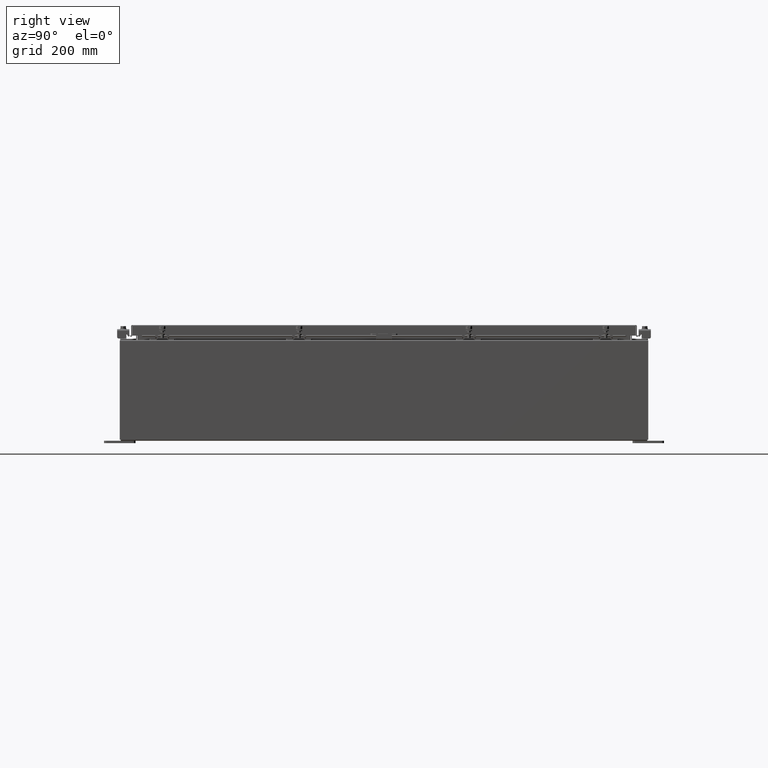
[diagram: clean part render]
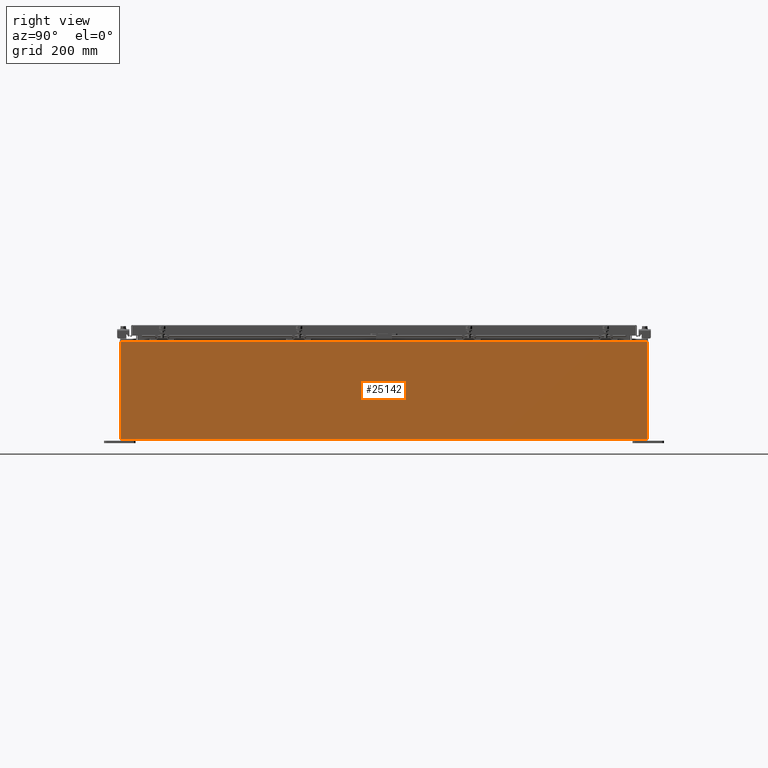
[diagram: same view with one face highlighted and labeled with its STEP entity id]
A machine part, right view. The second image highlights one B-rep face of the part: STEP entity #25142.
In plain terms, the highlighted planar face has unit normal (-1, 0, 0).
Its self-contained STEP definition (entity closure, byte-faithful):
#401 = VERTEX_POINT ( 'NONE', #12140 ) ;
#1977 = ORIENTED_EDGE ( 'NONE', *, *, #24314, .T. ) ;
#2423 = LINE ( 'NONE', #15196, #41766 ) ;
#3946 = EDGE_CURVE ( 'NONE', #45231, #401, #41501, .T. ) ;
#11906 = EDGE_CURVE ( 'NONE', #38152, #45231, #22863, .T. ) ;
#12140 = CARTESIAN_POINT ( 'NONE',  ( 18.00000000000000400, -20.92529999999999600, 0.01299999999999983500 ) ) ;
#12418 = VECTOR ( 'NONE', #45360, 39.37007874015748100 ) ;
#15196 = CARTESIAN_POINT ( 'NONE',  ( 18.00000000000000400, 20.92529999999998900, -6.479601959972424800E-014 ) ) ;
#18584 = CARTESIAN_POINT ( 'NONE',  ( 18.00000000000000400, -20.92529999999999600, 0.01299999999999985200 ) ) ;
#18719 = CARTESIAN_POINT ( 'NONE',  ( 18.00000000000003200, -20.92529999999999600, 7.837599999999999200 ) ) ;
#22174 = VERTEX_POINT ( 'NONE', #36466 ) ;
#22863 = LINE ( 'NONE', #48428, #12418 ) ;
#24314 = EDGE_CURVE ( 'NONE', #22174, #38152, #2423, .T. ) ;
#24427 = ORIENTED_EDGE ( 'NONE', *, *, #33130, .F. ) ;
#25142 = ADVANCED_FACE ( 'NONE', ( #29379 ), #32156, .F. ) ;
#25551 = ORIENTED_EDGE ( 'NONE', *, *, #11906, .T. ) ;
#27463 = AXIS2_PLACEMENT_3D ( 'NONE', #28216, #47779, #36092 ) ;
#28216 = CARTESIAN_POINT ( 'NONE',  ( 18.00000000000000400, 0.0000000000000000000, -6.479601959972424800E-014 ) ) ;
#29379 = FACE_OUTER_BOUND ( 'NONE', #32625, .T. ) ;
#30482 = DIRECTION ( 'NONE',  ( -0.0000000000000000000, -1.000000000000000000, -0.0000000000000000000 ) ) ;
#31041 = VECTOR ( 'NONE', #48556, 39.37007874015748100 ) ;
#32156 = PLANE ( 'NONE',  #27463 ) ;
#32625 = EDGE_LOOP ( 'NONE', ( #25551, #47641, #24427, #1977 ) ) ;
#33130 = EDGE_CURVE ( 'NONE', #22174, #401, #42229, .T. ) ;
#36092 = DIRECTION ( 'NONE',  ( 3.584876173029202900E-015, 0.0000000000000000000, 1.000000000000000000 ) ) ;
#36466 = CARTESIAN_POINT ( 'NONE',  ( 18.00000000000000400, 20.92529999999998600, 0.01299999999999985200 ) ) ;
#38152 = VERTEX_POINT ( 'NONE', #43572 ) ;
#40652 = CARTESIAN_POINT ( 'NONE',  ( 18.00000000000000400, -20.92529999999999600, -6.479601959972424800E-014 ) ) ;
#41501 = LINE ( 'NONE', #40652, #31041 ) ;
#41766 = VECTOR ( 'NONE', #42703, 39.37007874015748100 ) ;
#42229 = LINE ( 'NONE', #18584, #50228 ) ;
#42703 = DIRECTION ( 'NONE',  ( 3.584876173029202900E-015, 0.0000000000000000000, 1.000000000000000000 ) ) ;
#43572 = CARTESIAN_POINT ( 'NONE',  ( 18.00000000000002800, 20.92529999999997500, 7.837599999999999200 ) ) ;
#45231 = VERTEX_POINT ( 'NONE', #18719 ) ;
#45360 = DIRECTION ( 'NONE',  ( -0.0000000000000000000, -1.000000000000000000, -0.0000000000000000000 ) ) ;
#47641 = ORIENTED_EDGE ( 'NONE', *, *, #3946, .T. ) ;
#47779 = DIRECTION ( 'NONE',  ( -1.000000000000000000, 0.0000000000000000000, 3.584876173029202900E-015 ) ) ;
#48428 = CARTESIAN_POINT ( 'NONE',  ( 18.00000000000002800, 20.92529999999997900, 7.837599999999999200 ) ) ;
#48556 = DIRECTION ( 'NONE',  ( -3.584876173029202900E-015, 0.0000000000000000000, -1.000000000000000000 ) ) ;
#50228 = VECTOR ( 'NONE', #30482, 39.37007874015748100 ) ;